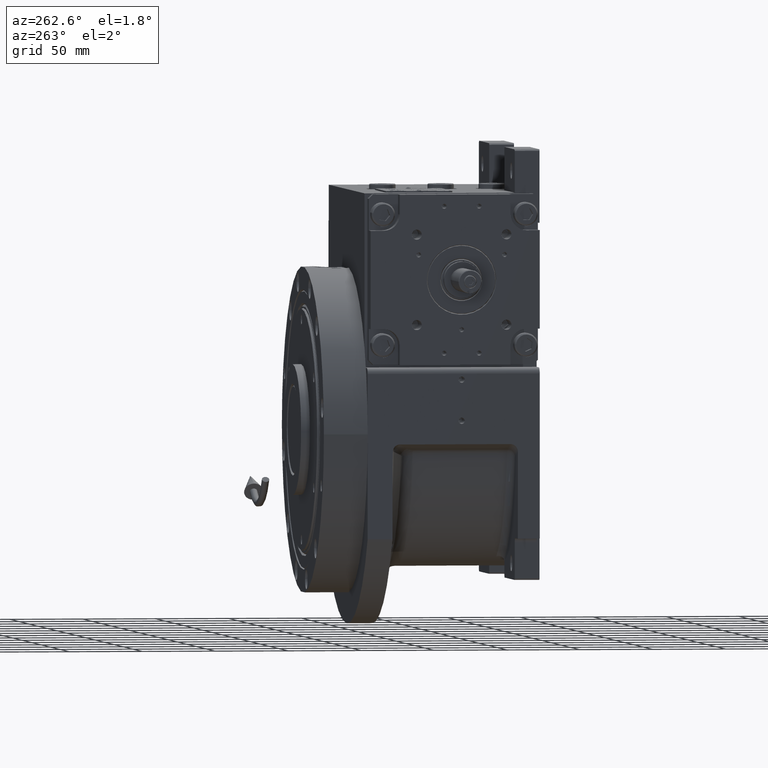
[diagram: clean part render]
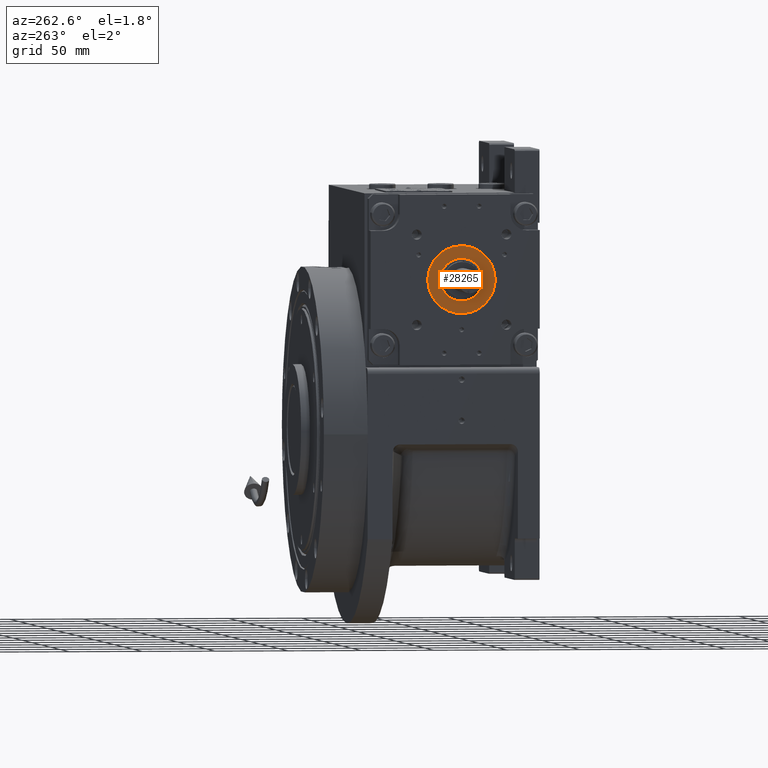
[diagram: same view with one face highlighted and labeled with its STEP entity id]
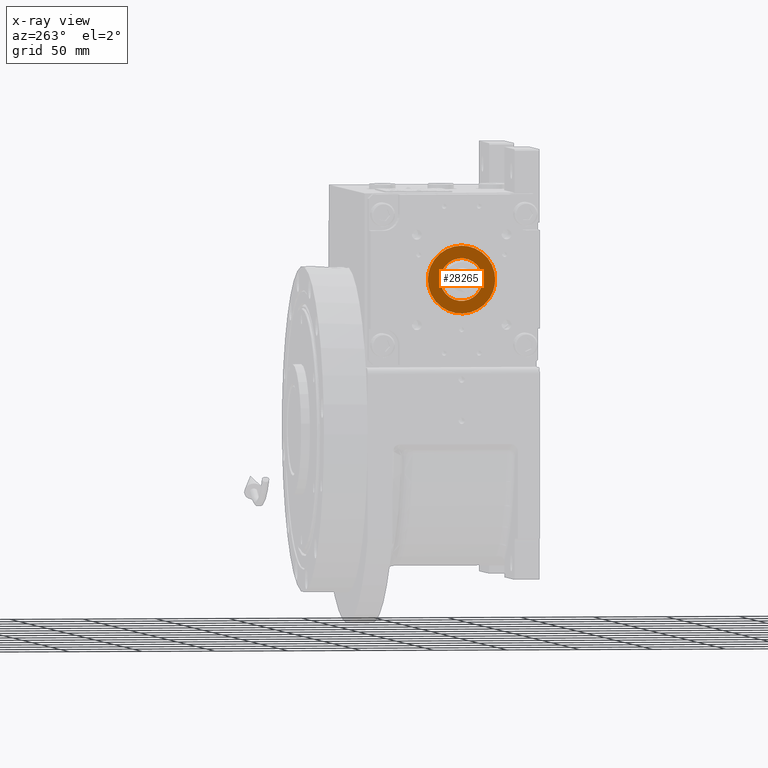
[diagram: x-ray of the same camera — body ghosted, the highlighted face saturated]
A machine part, auxiliary view. The second image highlights one B-rep face of the part: STEP entity #28265.
The next image is the same camera in x-ray: the body ghosted, the highlighted face saturated — about 0% of this face is hidden behind the body in this view.
In plain terms, the highlighted planar face has unit normal (1, -0, 0).
Its self-contained STEP definition (entity closure, byte-faithful):
#79 = EDGE_LOOP ( 'NONE', ( #62579, #1844, #56984 ) ) ;
#381 = CARTESIAN_POINT ( 'NONE',  ( 14.54009600442805450, 6.999999999999992006, 0.000000000000000000 ) ) ;
#1844 = ORIENTED_EDGE ( 'NONE', *, *, #5845, .T. ) ;
#3878 = EDGE_CURVE ( 'NONE', #67463, #36642, #25986, .T. ) ;
#4066 = CARTESIAN_POINT ( 'NONE',  ( 23.09585573493750132, 7.000000000000002665, -13.52923890735010559 ) ) ;
#4387 = CARTESIAN_POINT ( 'NONE',  ( -23.09585401869804855, 6.999999542325357815, -2.173322632970098311E-08 ) ) ;
#5845 = EDGE_CURVE ( 'NONE', #36642, #18921, #44885, .T. ) ;
#7481 = DIRECTION ( 'NONE',  ( -1.836970198721030181E-16, -1.000000000000000000, 0.000000000000000000 ) ) ;
#7981 = CARTESIAN_POINT ( 'NONE',  ( -1.318389841742373392E-13, 7.000000000000007105, -23.09585494913769921 ) ) ;
#8545 = CARTESIAN_POINT ( 'NONE',  ( -1.318389841742373392E-13, 7.000000000000007105, -23.09585494913769921 ) ) ;
#9470 = EDGE_CURVE ( 'NONE', #18921, #67463, #47484, .T. ) ;
#13595 = DIRECTION ( 'NONE',  ( 1.000000000000000000, 0.000000000000000000, -1.832543098951272119E-16 ) ) ;
#14031 = VERTEX_POINT ( 'NONE', #45611 ) ;
#14960 = CARTESIAN_POINT ( 'NONE',  ( 8.881784197001260212E-16, 7.000000000000006217, 0.000000000000000000 ) ) ;
#17320 = CARTESIAN_POINT ( 'NONE',  ( -23.09585401869804855, 6.999999542325357815, -2.173322632970098311E-08 ) ) ;
#17983 = CARTESIAN_POINT ( 'NONE',  ( -13.52923841247563708, 7.000000000000010658, -23.09585443615200973 ) ) ;
#18921 = VERTEX_POINT ( 'NONE', #17320 ) ;
#19888 = CARTESIAN_POINT ( 'NONE',  ( -8.974547976333063281E-07, 7.000000000000004441, 23.09585494913771697 ) ) ;
#21909 = EDGE_CURVE ( 'NONE', #40241, #14031, #41101, .T. ) ;
#25361 = CIRCLE ( 'NONE', #63798, 14.54009600442812022 ) ;
#25735 = CARTESIAN_POINT ( 'NONE',  ( 23.09585401869799881, 6.999999542325330282, 2.173375368563768006E-08 ) ) ;
#25986 =( BOUNDED_CURVE ( )  B_SPLINE_CURVE ( 3, ( #51207, #4066, #55680, #8545 ),
 .UNSPECIFIED., .F., .F. ) 
 B_SPLINE_CURVE_WITH_KNOTS ( ( 4, 4 ),
 ( 5.774591035009657425, 7.345387430054535649 ),
 .UNSPECIFIED. ) 
 CURVE ( )  GEOMETRIC_REPRESENTATION_ITEM ( )  RATIONAL_B_SPLINE_CURVE ( ( 1.000000000000000000, 0.8047378380376898344, 0.8047378380376898344, 1.000000000000000000 ) ) 
 REPRESENTATION_ITEM ( '' )  );
#26783 = AXIS2_PLACEMENT_3D ( 'NONE', #14960, #36003, #56953 ) ;
#28265 = ADVANCED_FACE ( 'NONE', ( #49116, #43992 ), #49465, .F. ) ;
#29541 = CARTESIAN_POINT ( 'NONE',  ( -23.09585573493721355, 7.000000000000010658, 13.52923849051302341 ) ) ;
#29876 = CARTESIAN_POINT ( 'NONE',  ( 13.52923793185785151, 7.000000000000003553, 23.09585496186891973 ) ) ;
#32217 = EDGE_CURVE ( 'NONE', #40241, #14031, #25361, .T. ) ;
#33323 = CARTESIAN_POINT ( 'NONE',  ( -1.318389841742373392E-13, 7.000000000000007105, -23.09585494913769921 ) ) ;
#36003 = DIRECTION ( 'NONE',  ( 8.378273519799830948E-35, 1.000000000000000000, 0.000000000000000000 ) ) ;
#36184 = AXIS2_PLACEMENT_3D ( 'NONE', #64976, #7481, #66000 ) ;
#36642 = VERTEX_POINT ( 'NONE', #33323 ) ;
#38321 = CARTESIAN_POINT ( 'NONE',  ( -23.09585401869804855, 6.999999542325357815, -2.173322632970098311E-08 ) ) ;
#40241 = VERTEX_POINT ( 'NONE', #381 ) ;
#40896 = CARTESIAN_POINT ( 'NONE',  ( 23.09585468350353565, 7.000000000000001776, 13.52923853398008447 ) ) ;
#41101 = CIRCLE ( 'NONE', #26783, 14.54009600442812022 ) ;
#43992 = FACE_BOUND ( 'NONE', #44300, .T. ) ;
#44300 = EDGE_LOOP ( 'NONE', ( #56695, #57283 ) ) ;
#44885 =( BOUNDED_CURVE ( )  B_SPLINE_CURVE ( 3, ( #7981, #17983, #60631, #38321 ),
 .UNSPECIFIED., .F., .F. ) 
 B_SPLINE_CURVE_WITH_KNOTS ( ( 4, 4 ),
 ( 1.062202122874949417, 2.632998440204159074 ),
 .UNSPECIFIED. ) 
 CURVE ( )  GEOMETRIC_REPRESENTATION_ITEM ( )  RATIONAL_B_SPLINE_CURVE ( ( 1.000000000000000000, 0.8047378563554488107, 0.8047378563554488107, 1.000000000000000000 ) ) 
 REPRESENTATION_ITEM ( '' )  );
#45611 = CARTESIAN_POINT ( 'NONE',  ( -14.54009600442816641, 7.000000000000006217, 0.000000000000000000 ) ) ;
#47484 =( BOUNDED_CURVE ( )  B_SPLINE_CURVE ( 3, ( #4387, #29541, #66701, #19888, #29876, #40896, #25735 ),
 .UNSPECIFIED., .F., .F. ) 
 B_SPLINE_CURVE_WITH_KNOTS ( ( 4, 3, 4 ),
 ( 2.632998397732662088, 4.203794753919684268, 5.774591110106706893 ),
 .UNSPECIFIED. ) 
 CURVE ( )  GEOMETRIC_REPRESENTATION_ITEM ( )  RATIONAL_B_SPLINE_CURVE ( ( 1.000000000000000000, 0.8047378471965744851, 0.8047378471965744851, 1.000000000000000000, 0.8047378471965744851, 0.8047378471965744851, 1.000000000000000000 ) ) 
 REPRESENTATION_ITEM ( '' )  );
#49116 = FACE_OUTER_BOUND ( 'NONE', #79, .T. ) ;
#49465 = PLANE ( 'NONE',  #36184 ) ;
#51207 = CARTESIAN_POINT ( 'NONE',  ( 23.09585401869799881, 6.999999542325330282, 2.173375368563768006E-08 ) ) ;
#54336 = CARTESIAN_POINT ( 'NONE',  ( 23.09585401869799881, 6.999999542325330282, 2.173375368563768006E-08 ) ) ;
#55680 = CARTESIAN_POINT ( 'NONE',  ( 13.52923924615012652, 7.000000000000004441, -23.09585546212341711 ) ) ;
#56695 = ORIENTED_EDGE ( 'NONE', *, *, #21909, .F. ) ;
#56953 = DIRECTION ( 'NONE',  ( 1.000000000000000000, 0.000000000000000000, 0.000000000000000000 ) ) ;
#56984 = ORIENTED_EDGE ( 'NONE', *, *, #9470, .T. ) ;
#57283 = ORIENTED_EDGE ( 'NONE', *, *, #32217, .T. ) ;
#59400 = CARTESIAN_POINT ( 'NONE',  ( 9.860761315262647568E-29, 7.000000000000006217, 0.000000000000000000 ) ) ;
#60631 = CARTESIAN_POINT ( 'NONE',  ( -23.09585468350382342, 7.000000000000011546, -13.52923811714243030 ) ) ;
#60749 = DIRECTION ( 'NONE',  ( -8.378273519799830948E-35, -1.000000000000000000, 0.000000000000000000 ) ) ;
#62579 = ORIENTED_EDGE ( 'NONE', *, *, #3878, .T. ) ;
#63798 = AXIS2_PLACEMENT_3D ( 'NONE', #59400, #60749, #13595 ) ;
#64976 = CARTESIAN_POINT ( 'NONE',  ( 1.289551610513623713E-15, 7.000000000000006217, 0.000000000000000000 ) ) ;
#66000 = DIRECTION ( 'NONE',  ( -1.000000000000000000, 1.836970198721030181E-16, 0.000000000000000000 ) ) ;
#66701 = CARTESIAN_POINT ( 'NONE',  ( -13.52923972676744491, 7.000000000000007994, 23.09585493640651421 ) ) ;
#67463 = VERTEX_POINT ( 'NONE', #54336 ) ;